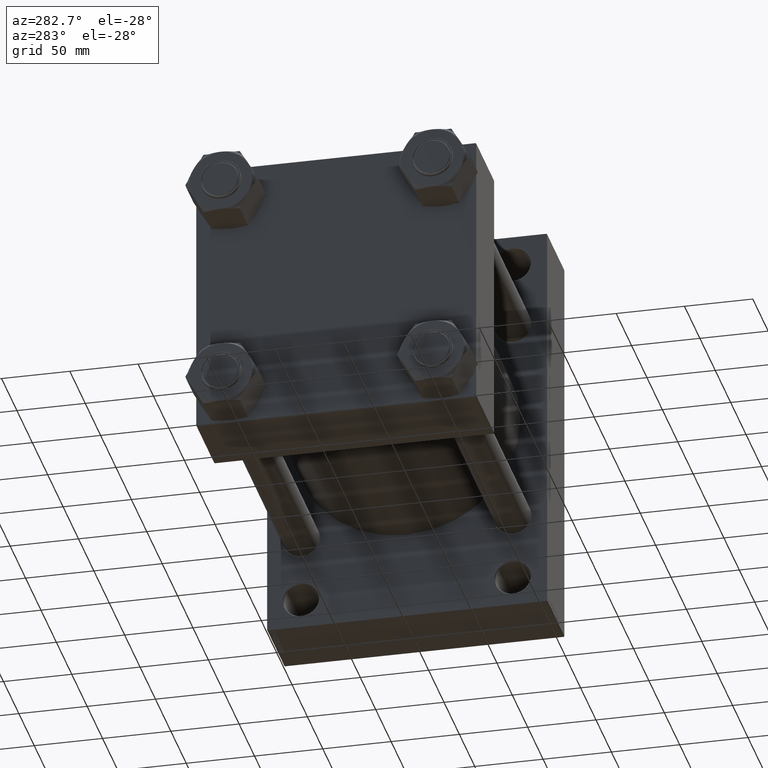
[diagram: clean part render]
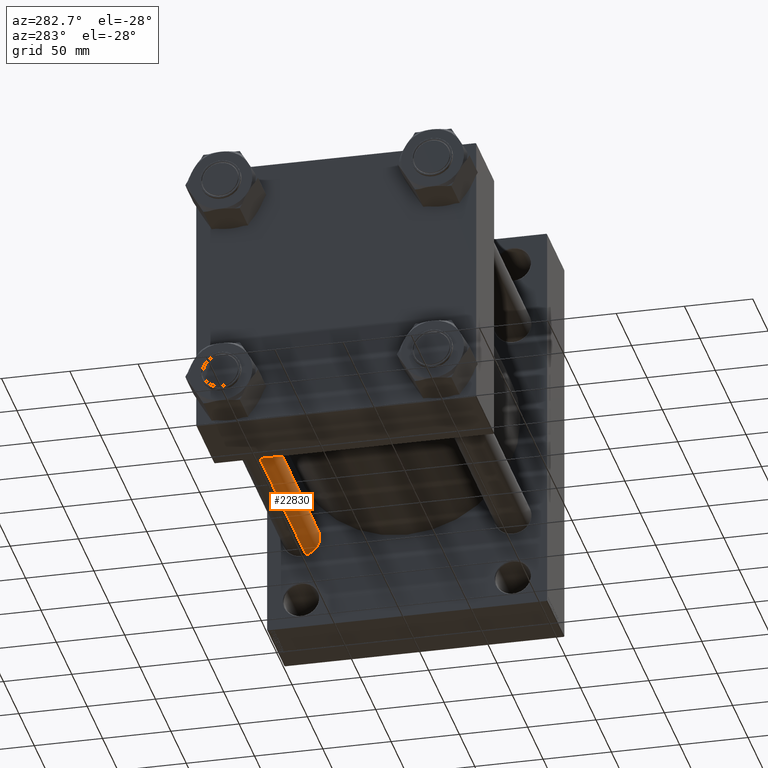
[diagram: same view with one face highlighted and labeled with its STEP entity id]
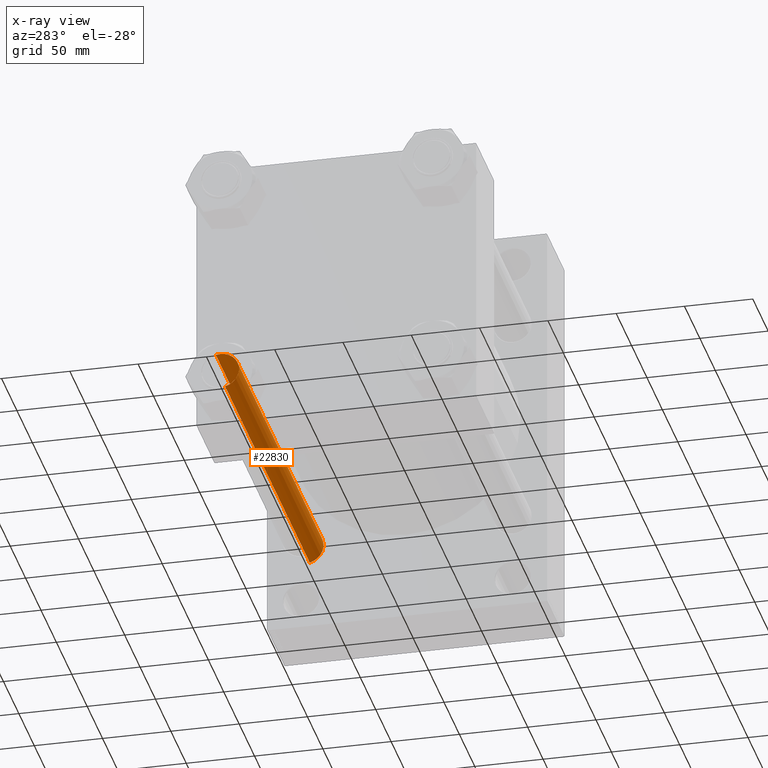
[diagram: x-ray of the same camera — body ghosted, the highlighted face saturated]
A machine part, auxiliary view. The second image highlights one B-rep face of the part: STEP entity #22830.
The next image is the same camera in x-ray: the body ghosted, the highlighted face saturated — about 0% of this face is hidden behind the body in this view.
In plain terms, the highlighted cylindrical surface (edge-blend (fillet) strip) has radius 13.5 mm, axis along (1, -0, 0).
Its self-contained STEP definition (entity closure, byte-faithful):
#50 = EDGE_LOOP ( 'NONE', ( #41553, #39688, #33631, #6418 ) ) ;
#2398 = CARTESIAN_POINT ( 'NONE',  ( -13.50000000000000000, 0.000000000000000000, 276.0000000000000000 ) ) ;
#2567 = DIRECTION ( 'NONE',  ( -0.000000000000000000, -0.000000000000000000, -1.000000000000000000 ) ) ;
#2874 = LINE ( 'NONE', #2398, #26007 ) ;
#3826 = EDGE_CURVE ( 'NONE', #25808, #34681, #7416, .T. ) ;
#4225 = CARTESIAN_POINT ( 'NONE',  ( -13.50000000000000000, 0.000000000000000000, 0.4999999999999449329 ) ) ;
#4466 = DIRECTION ( 'NONE',  ( 0.000000000000000000, 0.000000000000000000, -1.000000000000000000 ) ) ;
#6418 = ORIENTED_EDGE ( 'NONE', *, *, #3826, .T. ) ;
#7416 = CIRCLE ( 'NONE', #14355, 13.50000000000000000 ) ;
#10455 = VERTEX_POINT ( 'NONE', #19872 ) ;
#13165 = EDGE_CURVE ( 'NONE', #21433, #34681, #47044, .T. ) ;
#13666 = DIRECTION ( 'NONE',  ( -1.000000000000000000, 0.000000000000000000, 0.000000000000000000 ) ) ;
#14355 = AXIS2_PLACEMENT_3D ( 'NONE', #26002, #25308, #40015 ) ;
#14941 = CARTESIAN_POINT ( 'NONE',  ( 13.50000000000000000, 1.653273178848926867E-15, 275.4999999999999432 ) ) ;
#17604 = DIRECTION ( 'NONE',  ( -0.000000000000000000, -0.000000000000000000, -1.000000000000000000 ) ) ;
#19872 = CARTESIAN_POINT ( 'NONE',  ( -13.50000000000000000, 0.000000000000000000, 275.4999999999999432 ) ) ;
#20228 = CIRCLE ( 'NONE', #47175, 13.50000000000000000 ) ;
#21236 = DIRECTION ( 'NONE',  ( -0.000000000000000000, -0.000000000000000000, -1.000000000000000000 ) ) ;
#21433 = VERTEX_POINT ( 'NONE', #14941 ) ;
#22830 = ADVANCED_FACE ( 'NONE', ( #47403 ), #47177, .T. ) ;
#24601 = EDGE_CURVE ( 'NONE', #10455, #25808, #2874, .T. ) ;
#25308 = DIRECTION ( 'NONE',  ( -0.000000000000000000, -0.000000000000000000, 1.000000000000000000 ) ) ;
#25808 = VERTEX_POINT ( 'NONE', #4225 ) ;
#26002 = CARTESIAN_POINT ( 'NONE',  ( 0.000000000000000000, 0.000000000000000000, 0.4999999999999449329 ) ) ;
#26007 = VECTOR ( 'NONE', #17604, 1000.000000000000000 ) ;
#26427 = DIRECTION ( 'NONE',  ( 1.000000000000000000, 0.000000000000000000, 0.000000000000000000 ) ) ;
#29537 = CARTESIAN_POINT ( 'NONE',  ( 13.50000000000000000, 1.653273178848926867E-15, 0.4999999999999449329 ) ) ;
#31356 = AXIS2_PLACEMENT_3D ( 'NONE', #46697, #2567, #13666 ) ;
#33631 = ORIENTED_EDGE ( 'NONE', *, *, #24601, .T. ) ;
#34681 = VERTEX_POINT ( 'NONE', #29537 ) ;
#38899 = CARTESIAN_POINT ( 'NONE',  ( 0.000000000000000000, 0.000000000000000000, 275.4999999999999432 ) ) ;
#39688 = ORIENTED_EDGE ( 'NONE', *, *, #43913, .T. ) ;
#39968 = VECTOR ( 'NONE', #21236, 1000.000000000000000 ) ;
#40015 = DIRECTION ( 'NONE',  ( 1.000000000000000000, 0.000000000000000000, 0.000000000000000000 ) ) ;
#41553 = ORIENTED_EDGE ( 'NONE', *, *, #13165, .F. ) ;
#43873 = CARTESIAN_POINT ( 'NONE',  ( 13.50000000000000000, 1.653273178848926867E-15, 276.0000000000000000 ) ) ;
#43913 = EDGE_CURVE ( 'NONE', #21433, #10455, #20228, .T. ) ;
#46697 = CARTESIAN_POINT ( 'NONE',  ( 0.000000000000000000, 0.000000000000000000, 276.0000000000000000 ) ) ;
#47044 = LINE ( 'NONE', #43873, #39968 ) ;
#47175 = AXIS2_PLACEMENT_3D ( 'NONE', #38899, #4466, #26427 ) ;
#47177 = CYLINDRICAL_SURFACE ( 'NONE', #31356, 13.50000000000000000 ) ;
#47403 = FACE_OUTER_BOUND ( 'NONE', #50, .T. ) ;